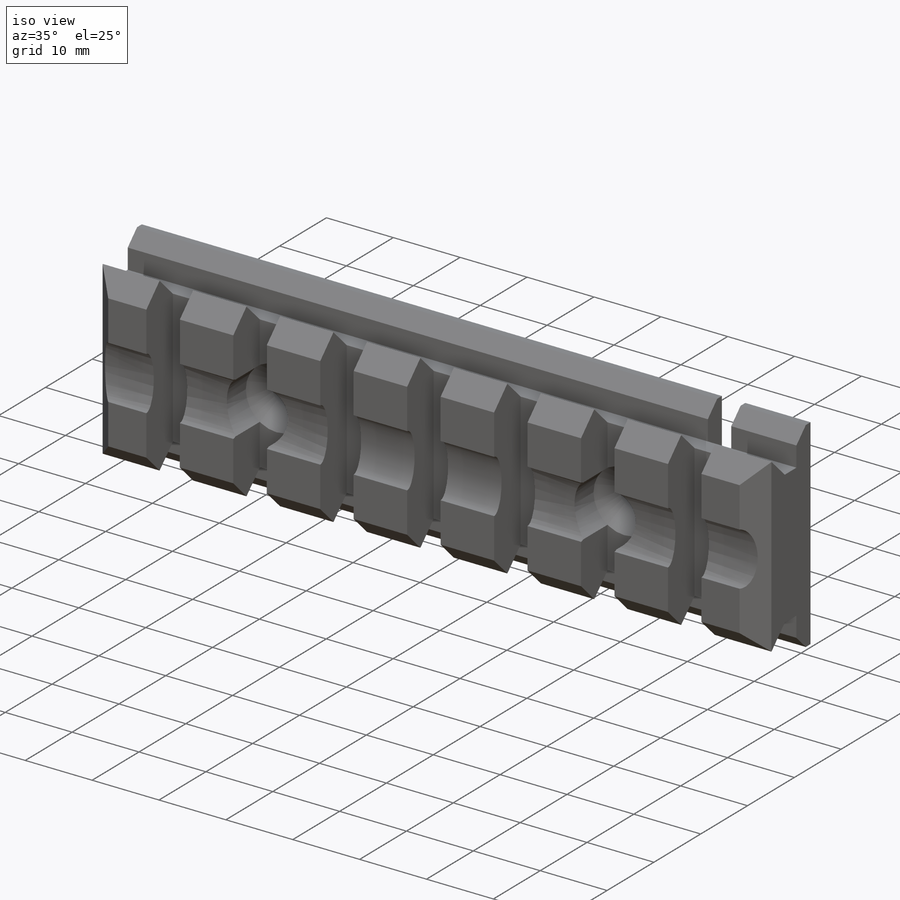
[diagram: iso view]
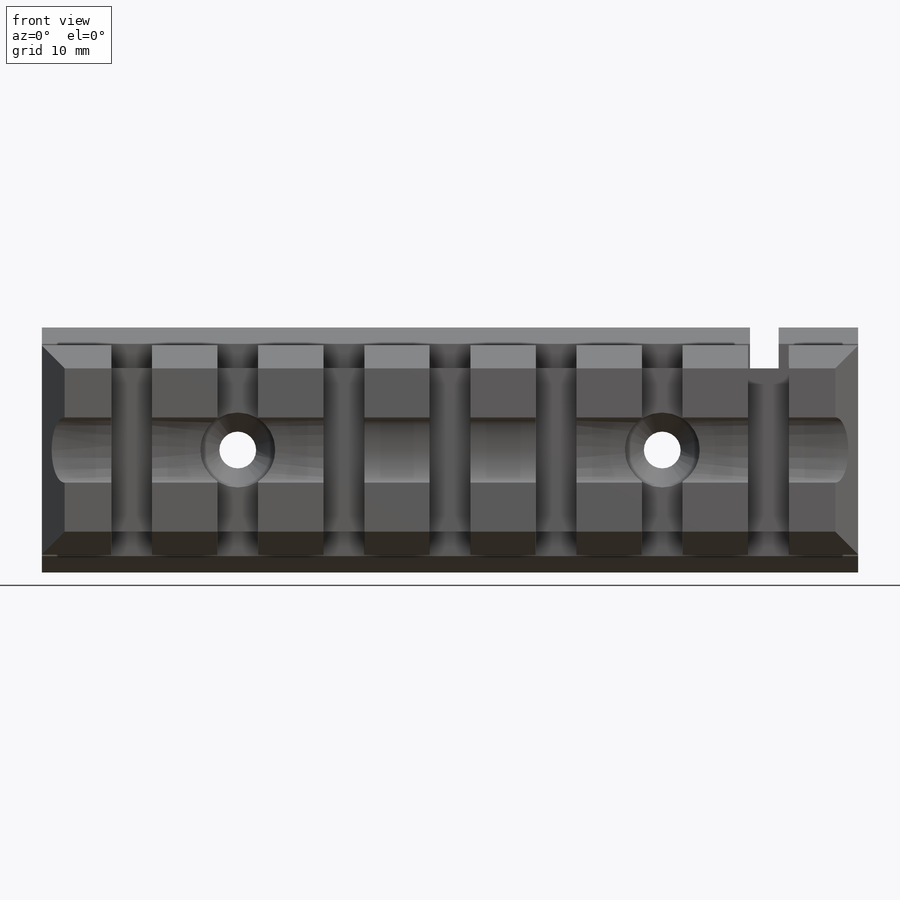
[diagram: front view]
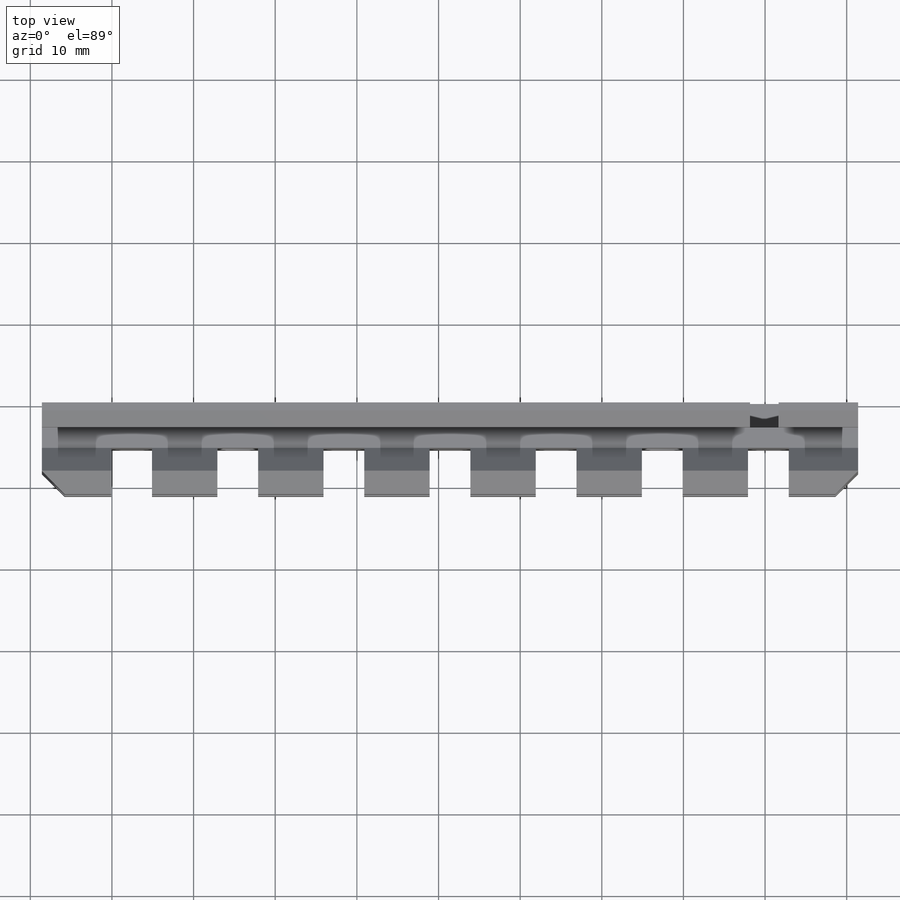
[diagram: top view]
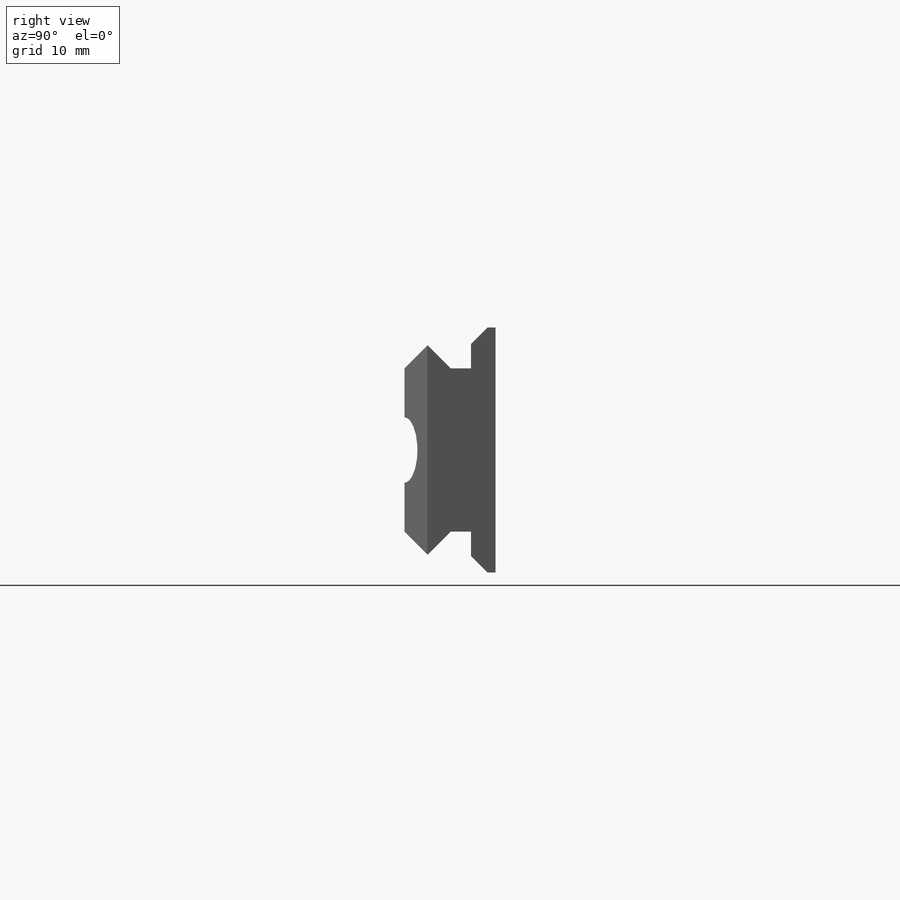
[diagram: right view]
SOLIDWORKS PART (.sldprt)
format: sldprt  version: not decoded by parser v0  size: 414,208 bytes
history: native  units: mm
features: sketch x9, plane x4, chamfer x4, cut_extrude x4, extrude x3, material x1, pattern_linear x1, hole x1 (+9 scaffold rows collapsed)
feature tree (36):
  scaffold x9  (default folders/planes/origin — collapsed)
  material  "Material <nicht festgelegt>"
  plane  "Ebene vorne"
  plane  "Ebene oben"
  plane  "Ebene rechts"
  sketch  "Skizze1"  dims[D1=100.0mm D2=30.0mm]
  extrude  "Aufsatz-Linear austragen1"  Depth=3mm
  sketch  "Skizze4"  dims[c1.D1=5.0mm c1.D2=100.0mm c2.D2=270.0deg c3.D2=5.0mm]
  extrude  "Aufsatz-Linear austragen2"  Depth=2.5mm
  sketch  "Skizze7"  dims[c1.D1=~5.75735mm c2.D1=135.0deg c2.D2=4.0mm c2.D3=4.0mm c2.D4=20.0mm c3.D3=0.0mm]
  extrude  "Aufsatz-Linear austragen3"  [1 undecoded]
  chamfer  "Fase1"  Distance=2.8mm
  chamfer  "Fase2"  Distance=2.8mm
  sketch  "Skizze8"  dims[c1.D1=5.0mm c1.D2=7.5mm c1.D3=10.3mm c2.D2=8.5mm]
  cut_extrude  "Schnitt-Linear austragen1"  [1 undecoded]
  pattern_linear  "Lineares Muster1"  Count1=7 Count2=1 Spacing1=13mm Spacing2=10mm
  chamfer  "Fase3"  Distance=2mm Angle=45deg
  chamfer  "Fase4"  Distance=2mm Angle=45deg
  hole  "Formsenkung für M4 Senkschraube mit Innensechskant1"  Diameter=4.5mm Depth=5.5mm
  sketch  "Skizze10"  dims[D1=2.5mm D2=10.0mm D3=10.0mm D4=2.5mm]
  sketch  "Skizze9"  dims[hole-wizard template sketch: 54 standard entries collapsed; hole parameters kept: c17.Bohrerdurchmesser=4.5mm c17.Bohrungstiefe=5.5mm c17.Senkdurchmesser (Oben)=9.18mm c17.D4=~3.666174mm c17.Senkwinkel (Oben)=90.0deg]
  plane  "Ebene1"
  sketch  "Skizze13"  dims[D1=12.8mm]
  cut_extrude  "Schnitt-Linear austragen2"  [1 undecoded]
  sketch  "Skizze14"
  cut_extrude  "Schnitt-Linear austragen3"  [1 undecoded]
  sketch  "Skizze15"  dims[c1.D1=3.5mm c1.D2=10.75mm c1.D3=5.0mm c1.D4=3.5mm c2.D3=0.0mm]
  cut_extrude  "Schnitt-Linear austragen4"  Depth=3mm
decode coverage: 17 of 22 modeling features carry decoded parameters
note: ~ marks probable driven/reference dimensions
note: 4 parameter values undecoded
summary: no parameter record found for 4 features
note: suppression state not decoded; provenance and decode notes live in map.json
